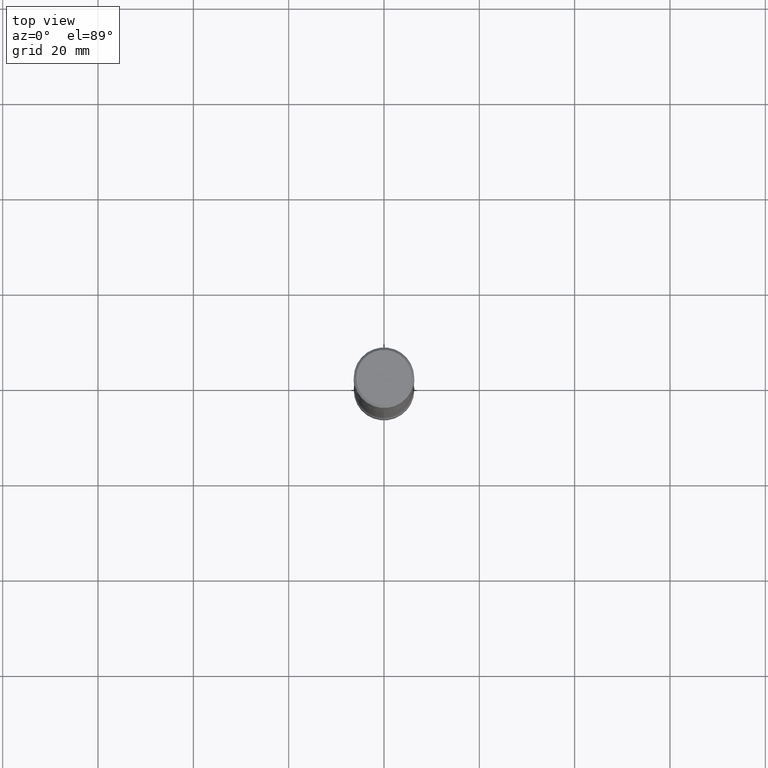
[diagram: clean part render]
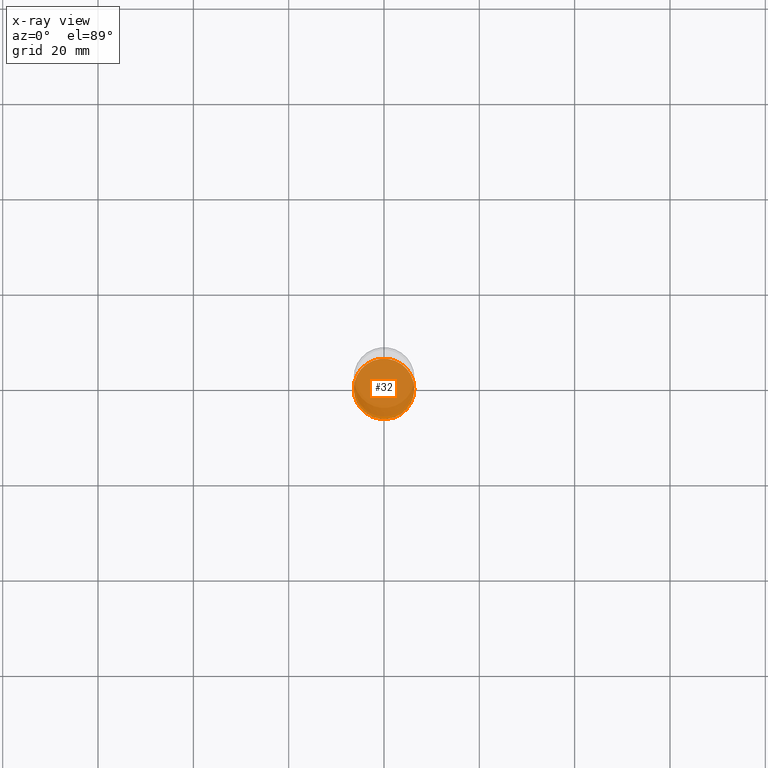
[diagram: x-ray — body ghosted, one internal face saturated and labeled with its STEP entity id]
A machine part, top view, then the same camera in x-ray: the body is ghosted and one INTERNAL B-rep face — a face not visible from any outside direction — is saturated and labeled: STEP entity #32.
In plain terms, the highlighted planar face has unit normal (0, -0, -1).
Its self-contained STEP definition (entity closure, byte-faithful):
#19 = DIRECTION ( 'NONE',  ( -1.000000000000000000, 6.982962677686265922E-15, -4.876176775795935793E-29 ) ) ;
#32 = ADVANCED_FACE ( 'NONE', ( #447 ), #53, .F. ) ;
#50 = EDGE_CURVE ( 'NONE', #355, #387, #538, .T. ) ;
#53 = PLANE ( 'NONE',  #378 ) ;
#102 = CARTESIAN_POINT ( 'NONE',  ( 1.314439483324511369E-28, -1.876671219628191278E-14, -5.375000000000001776 ) ) ;
#116 = DIRECTION ( 'NONE',  ( -2.445468806185136597E-29, 3.491481338843145583E-15, 1.000000000000000000 ) ) ;
#128 = ORIENTED_EDGE ( 'NONE', *, *, #50, .T. ) ;
#151 = EDGE_CURVE ( 'NONE', #387, #355, #425, .T. ) ;
#176 = CARTESIAN_POINT ( 'NONE',  ( 0.2500000000000002776, -2.051245286570348262E-14, -5.375000000000001776 ) ) ;
#222 = DIRECTION ( 'NONE',  ( 1.000000000000000000, -6.982962677686270655E-15, 0.000000000000000000 ) ) ;
#245 = CARTESIAN_POINT ( 'NONE',  ( -0.2500000000000002776, -1.792432661502220065E-14, -5.375000000000001776 ) ) ;
#259 = AXIS2_PLACEMENT_3D ( 'NONE', #416, #116, #463 ) ;
#287 = DIRECTION ( 'NONE',  ( -2.445468806185136597E-29, 3.491481338843145583E-15, 1.000000000000000000 ) ) ;
#289 = CARTESIAN_POINT ( 'NONE',  ( -3.261302786302777691E-29, -4.226060494179454767E-14, -5.375000000000000888 ) ) ;
#355 = VERTEX_POINT ( 'NONE', #176 ) ;
#378 = AXIS2_PLACEMENT_3D ( 'NONE', #289, #407, #19 ) ;
#387 = VERTEX_POINT ( 'NONE', #245 ) ;
#392 = AXIS2_PLACEMENT_3D ( 'NONE', #102, #287, #222 ) ;
#407 = DIRECTION ( 'NONE',  ( 2.438088387897960049E-29, -3.491481338843145188E-15, -1.000000000000000000 ) ) ;
#416 = CARTESIAN_POINT ( 'NONE',  ( 1.314439483324511369E-28, -1.876671219628191278E-14, -5.375000000000001776 ) ) ;
#425 = CIRCLE ( 'NONE', #259, 0.2500000000000002776 ) ;
#447 = FACE_OUTER_BOUND ( 'NONE', #499, .T. ) ;
#463 = DIRECTION ( 'NONE',  ( 1.000000000000000000, -6.982962677686270655E-15, 0.000000000000000000 ) ) ;
#481 = ORIENTED_EDGE ( 'NONE', *, *, #151, .T. ) ;
#499 = EDGE_LOOP ( 'NONE', ( #128, #481 ) ) ;
#538 = CIRCLE ( 'NONE', #392, 0.2500000000000002776 ) ;